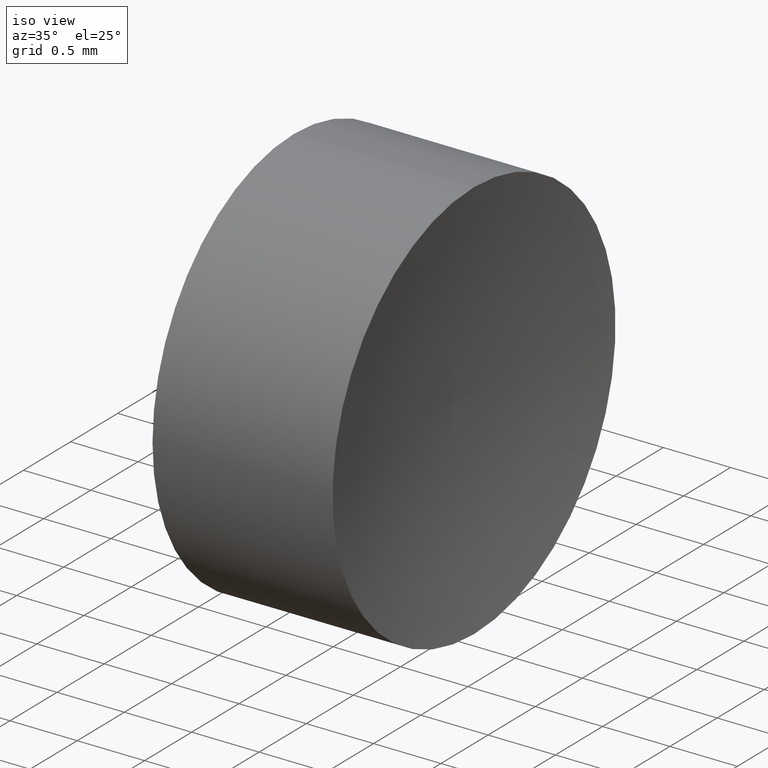
[diagram: clean part render]
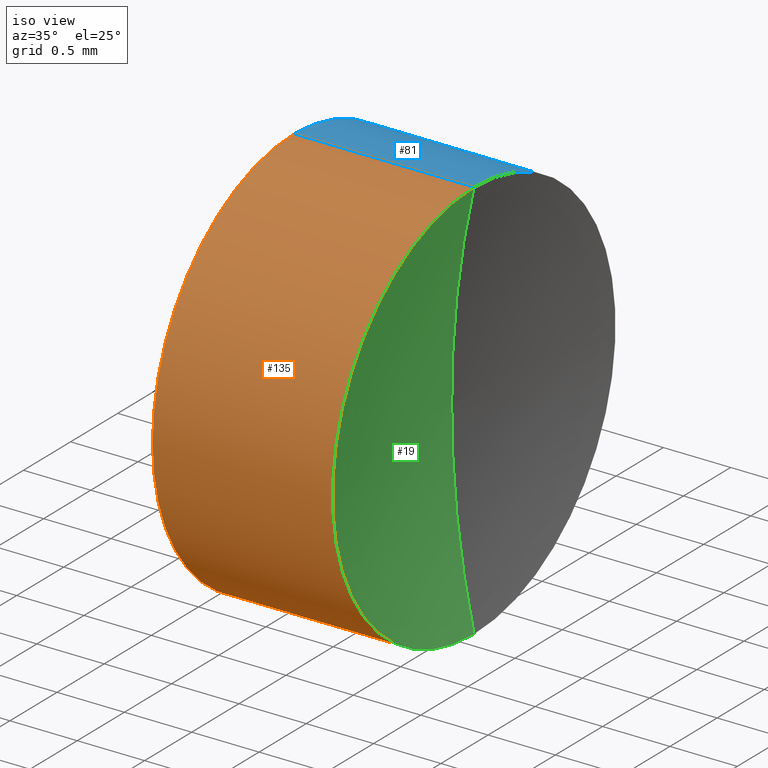
[diagram: same view with three faces highlighted in distinct colors, each labeled with its STEP entity id]
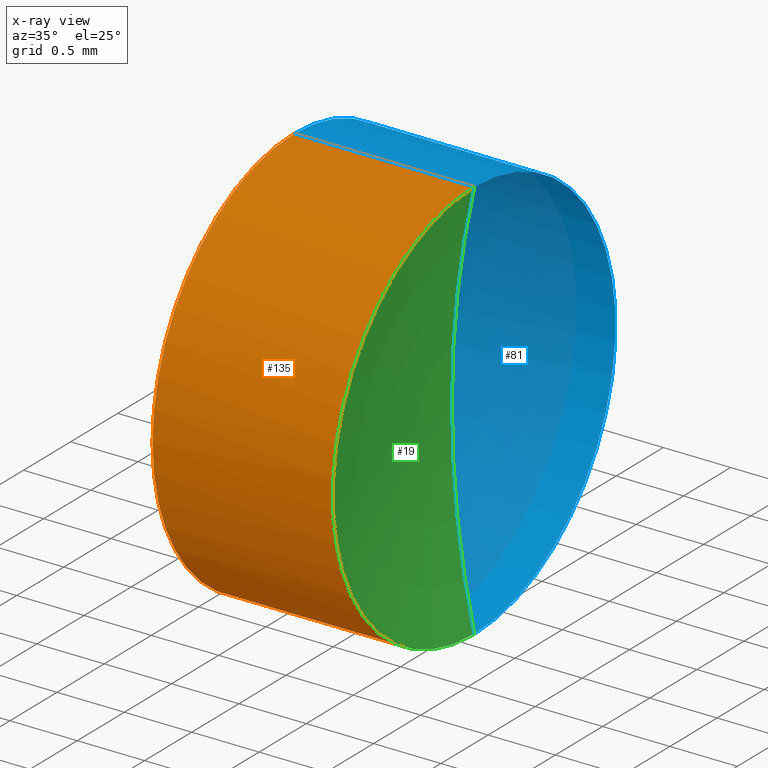
[diagram: x-ray of the same camera — body ghosted, the three highlighted faces saturated]
A machine part, iso view with three faces highlighted in distinct colors.
The next image is the same camera in x-ray (body ghosted, the three faces saturated) — at least one of them is partly hidden behind the body in this view.
Their STEP definitions:

[orange] entity #135 — the highlighted cylindrical surface (partial cylindrical patch) has radius 1.5 mm, axis along (-1, -0, -0).
#3 = CIRCLE ( 'NONE', #198, 1.499999999999996900 ) ;
#4 = CARTESIAN_POINT ( 'NONE',  ( 10.61246527853420600, 6.522260287298739600, -1.499999999999998700 ) ) ;
#6 = CARTESIAN_POINT ( 'NONE',  ( 12.68015962421213900, 6.522260287298739600, 1.500000000000000200 ) ) ;
#7 = DIRECTION ( 'NONE',  ( 0.0000000000000000000, 0.0000000000000000000, 1.000000000000000000 ) ) ;
#10 = EDGE_CURVE ( 'NONE', #64, #173, #149, .T. ) ;
#13 = FACE_OUTER_BOUND ( 'NONE', #78, .T. ) ;
#20 = DIRECTION ( 'NONE',  ( -1.000000000000000000, -0.0000000000000000000, -0.0000000000000000000 ) ) ;
#25 = CARTESIAN_POINT ( 'NONE',  ( 11.34326470139479100, 6.522260287298739600, 0.0000000000000000000 ) ) ;
#27 = ORIENTED_EDGE ( 'NONE', *, *, #10, .F. ) ;
#29 = AXIS2_PLACEMENT_3D ( 'NONE', #110, #199, #195 ) ;
#34 = EDGE_CURVE ( 'NONE', #125, #83, #137, .T. ) ;
#45 = CARTESIAN_POINT ( 'NONE',  ( 10.61246527853420600, 6.522260287298739600, 1.499999999999998700 ) ) ;
#46 = VECTOR ( 'NONE', #147, 1000.000000000000000 ) ;
#51 = VECTOR ( 'NONE', #138, 1000.000000000000000 ) ;
#55 = DIRECTION ( 'NONE',  ( 0.0000000000000000000, 0.0000000000000000000, 1.000000000000000000 ) ) ;
#62 = EDGE_CURVE ( 'NONE', #125, #64, #74, .T. ) ;
#64 = VERTEX_POINT ( 'NONE', #177 ) ;
#70 = CARTESIAN_POINT ( 'NONE',  ( 10.61246527853420600, 6.522260287298739600, 0.0000000000000000000 ) ) ;
#71 = CARTESIAN_POINT ( 'NONE',  ( 11.34326470139479100, 6.522260287298739600, 1.499999999999996900 ) ) ;
#74 = LINE ( 'NONE', #4, #51 ) ;
#78 = EDGE_LOOP ( 'NONE', ( #176, #115, #111, #211, #27 ) ) ;
#79 = EDGE_CURVE ( 'NONE', #173, #168, #3, .T. ) ;
#83 = VERTEX_POINT ( 'NONE', #6 ) ;
#86 = CARTESIAN_POINT ( 'NONE',  ( 11.34326470139478900, 5.022260287298740500, -1.836970198721027700E-016 ) ) ;
#88 = LINE ( 'NONE', #45, #46 ) ;
#99 = CYLINDRICAL_SURFACE ( 'NONE', #113, 1.499999999999998700 ) ;
#110 = CARTESIAN_POINT ( 'NONE',  ( 11.34326470139479100, 6.522260287298739600, 0.0000000000000000000 ) ) ;
#111 = ORIENTED_EDGE ( 'NONE', *, *, #204, .T. ) ;
#113 = AXIS2_PLACEMENT_3D ( 'NONE', #70, #185, #159 ) ;
#114 = CARTESIAN_POINT ( 'NONE',  ( 12.68015962421213900, 6.522260287298739600, -1.500000000000000200 ) ) ;
#115 = ORIENTED_EDGE ( 'NONE', *, *, #34, .T. ) ;
#125 = VERTEX_POINT ( 'NONE', #114 ) ;
#135 = ADVANCED_FACE ( 'NONE', ( #13 ), #99, .T. ) ;
#137 = CIRCLE ( 'NONE', #148, 1.500000000000000400 ) ;
#138 = DIRECTION ( 'NONE',  ( -1.000000000000000000, -0.0000000000000000000, -0.0000000000000000000 ) ) ;
#141 = DIRECTION ( 'NONE',  ( -1.000000000000000000, -0.0000000000000000000, -0.0000000000000000000 ) ) ;
#147 = DIRECTION ( 'NONE',  ( -1.000000000000000000, -0.0000000000000000000, -0.0000000000000000000 ) ) ;
#148 = AXIS2_PLACEMENT_3D ( 'NONE', #170, #20, #55 ) ;
#149 = CIRCLE ( 'NONE', #29, 1.499999999999996900 ) ;
#159 = DIRECTION ( 'NONE',  ( 0.0000000000000000000, 0.0000000000000000000, 1.000000000000000000 ) ) ;
#168 = VERTEX_POINT ( 'NONE', #71 ) ;
#170 = CARTESIAN_POINT ( 'NONE',  ( 12.68015962421213900, 6.522260287298739600, 0.0000000000000000000 ) ) ;
#173 = VERTEX_POINT ( 'NONE', #86 ) ;
#176 = ORIENTED_EDGE ( 'NONE', *, *, #62, .F. ) ;
#177 = CARTESIAN_POINT ( 'NONE',  ( 11.34326470139479100, 6.522260287298739600, -1.499999999999996900 ) ) ;
#185 = DIRECTION ( 'NONE',  ( -1.000000000000000000, -0.0000000000000000000, -0.0000000000000000000 ) ) ;
#195 = DIRECTION ( 'NONE',  ( 0.0000000000000000000, 0.0000000000000000000, 1.000000000000000000 ) ) ;
#198 = AXIS2_PLACEMENT_3D ( 'NONE', #25, #141, #7 ) ;
#199 = DIRECTION ( 'NONE',  ( -1.000000000000000000, -0.0000000000000000000, -0.0000000000000000000 ) ) ;
#204 = EDGE_CURVE ( 'NONE', #83, #168, #88, .T. ) ;
#211 = ORIENTED_EDGE ( 'NONE', *, *, #79, .F. ) ;

[blue] entity #81 — the highlighted cylindrical surface (partial cylindrical patch) has radius 1.5 mm, axis along (-1, -0, -0).
#4 = CARTESIAN_POINT ( 'NONE',  ( 10.61246527853420600, 6.522260287298739600, -1.499999999999998700 ) ) ;
#6 = CARTESIAN_POINT ( 'NONE',  ( 12.68015962421213900, 6.522260287298739600, 1.500000000000000200 ) ) ;
#9 = DIRECTION ( 'NONE',  ( -1.000000000000000000, -0.0000000000000000000, -0.0000000000000000000 ) ) ;
#12 = ORIENTED_EDGE ( 'NONE', *, *, #107, .F. ) ;
#17 = AXIS2_PLACEMENT_3D ( 'NONE', #98, #39, #37 ) ;
#21 = CARTESIAN_POINT ( 'NONE',  ( 11.34326470139478900, 8.022260287298737000, 0.0000000000000000000 ) ) ;
#37 = DIRECTION ( 'NONE',  ( 0.0000000000000000000, 0.0000000000000000000, 1.000000000000000000 ) ) ;
#39 = DIRECTION ( 'NONE',  ( -1.000000000000000000, -0.0000000000000000000, -0.0000000000000000000 ) ) ;
#40 = DIRECTION ( 'NONE',  ( -1.000000000000000000, -0.0000000000000000000, -0.0000000000000000000 ) ) ;
#45 = CARTESIAN_POINT ( 'NONE',  ( 10.61246527853420600, 6.522260287298739600, 1.499999999999998700 ) ) ;
#46 = VECTOR ( 'NONE', #147, 1000.000000000000000 ) ;
#51 = VECTOR ( 'NONE', #138, 1000.000000000000000 ) ;
#62 = EDGE_CURVE ( 'NONE', #125, #64, #74, .T. ) ;
#64 = VERTEX_POINT ( 'NONE', #177 ) ;
#71 = CARTESIAN_POINT ( 'NONE',  ( 11.34326470139479100, 6.522260287298739600, 1.499999999999996900 ) ) ;
#72 = EDGE_LOOP ( 'NONE', ( #194, #118, #12, #210, #132 ) ) ;
#74 = LINE ( 'NONE', #4, #51 ) ;
#81 = ADVANCED_FACE ( 'NONE', ( #179 ), #127, .T. ) ;
#83 = VERTEX_POINT ( 'NONE', #6 ) ;
#85 = EDGE_CURVE ( 'NONE', #83, #125, #172, .T. ) ;
#88 = LINE ( 'NONE', #45, #46 ) ;
#90 = AXIS2_PLACEMENT_3D ( 'NONE', #154, #189, #175 ) ;
#98 = CARTESIAN_POINT ( 'NONE',  ( 11.34326470139479100, 6.522260287298739600, 0.0000000000000000000 ) ) ;
#102 = DIRECTION ( 'NONE',  ( 0.0000000000000000000, 0.0000000000000000000, 1.000000000000000000 ) ) ;
#107 = EDGE_CURVE ( 'NONE', #169, #64, #184, .T. ) ;
#114 = CARTESIAN_POINT ( 'NONE',  ( 12.68015962421213900, 6.522260287298739600, -1.500000000000000200 ) ) ;
#117 = CARTESIAN_POINT ( 'NONE',  ( 11.34326470139479100, 6.522260287298739600, 0.0000000000000000000 ) ) ;
#118 = ORIENTED_EDGE ( 'NONE', *, *, #62, .T. ) ;
#125 = VERTEX_POINT ( 'NONE', #114 ) ;
#127 = CYLINDRICAL_SURFACE ( 'NONE', #136, 1.499999999999998700 ) ;
#132 = ORIENTED_EDGE ( 'NONE', *, *, #204, .F. ) ;
#136 = AXIS2_PLACEMENT_3D ( 'NONE', #188, #9, #102 ) ;
#138 = DIRECTION ( 'NONE',  ( -1.000000000000000000, -0.0000000000000000000, -0.0000000000000000000 ) ) ;
#143 = DIRECTION ( 'NONE',  ( 0.0000000000000000000, 0.0000000000000000000, 1.000000000000000000 ) ) ;
#144 = AXIS2_PLACEMENT_3D ( 'NONE', #117, #40, #143 ) ;
#147 = DIRECTION ( 'NONE',  ( -1.000000000000000000, -0.0000000000000000000, -0.0000000000000000000 ) ) ;
#154 = CARTESIAN_POINT ( 'NONE',  ( 12.68015962421213900, 6.522260287298739600, 0.0000000000000000000 ) ) ;
#164 = CIRCLE ( 'NONE', #144, 1.499999999999996900 ) ;
#168 = VERTEX_POINT ( 'NONE', #71 ) ;
#169 = VERTEX_POINT ( 'NONE', #21 ) ;
#172 = CIRCLE ( 'NONE', #90, 1.500000000000000400 ) ;
#175 = DIRECTION ( 'NONE',  ( 0.0000000000000000000, 0.0000000000000000000, 1.000000000000000000 ) ) ;
#177 = CARTESIAN_POINT ( 'NONE',  ( 11.34326470139479100, 6.522260287298739600, -1.499999999999996900 ) ) ;
#179 = FACE_OUTER_BOUND ( 'NONE', #72, .T. ) ;
#184 = CIRCLE ( 'NONE', #17, 1.499999999999996900 ) ;
#188 = CARTESIAN_POINT ( 'NONE',  ( 10.61246527853420600, 6.522260287298739600, 0.0000000000000000000 ) ) ;
#189 = DIRECTION ( 'NONE',  ( -1.000000000000000000, -0.0000000000000000000, -0.0000000000000000000 ) ) ;
#193 = EDGE_CURVE ( 'NONE', #168, #169, #164, .T. ) ;
#194 = ORIENTED_EDGE ( 'NONE', *, *, #85, .T. ) ;
#204 = EDGE_CURVE ( 'NONE', #83, #168, #88, .T. ) ;
#210 = ORIENTED_EDGE ( 'NONE', *, *, #193, .F. ) ;

[green] entity #19 — the highlighted toroidal blend (fillet) surface has major radius 0.0209 mm and minor (blend) radius 6.67 mm.
#1 = ORIENTED_EDGE ( 'NONE', *, *, #15, .F. ) ;
#6 = CARTESIAN_POINT ( 'NONE',  ( 12.68015962421213900, 6.522260287298739600, 1.500000000000000200 ) ) ;
#14 = DIRECTION ( 'NONE',  ( -1.000000000000000000, -0.0000000000000000000, -0.0000000000000000000 ) ) ;
#15 = EDGE_CURVE ( 'NONE', #83, #65, #95, .T. ) ;
#16 = EDGE_LOOP ( 'NONE', ( #23, #75, #1 ) ) ;
#19 = ADVANCED_FACE ( 'NONE', ( #58 ), #131, .F. ) ;
#20 = DIRECTION ( 'NONE',  ( -1.000000000000000000, -0.0000000000000000000, -0.0000000000000000000 ) ) ;
#23 = ORIENTED_EDGE ( 'NONE', *, *, #34, .F. ) ;
#32 = AXIS2_PLACEMENT_3D ( 'NONE', #59, #84, #205 ) ;
#34 = EDGE_CURVE ( 'NONE', #125, #83, #137, .T. ) ;
#36 = AXIS2_PLACEMENT_3D ( 'NONE', #50, #92, #128 ) ;
#49 = CARTESIAN_POINT ( 'NONE',  ( 19.18408597058988400, 6.522260287298739600, 0.0000000000000000000 ) ) ;
#50 = CARTESIAN_POINT ( 'NONE',  ( 19.18408597058988400, 6.522260287298739600, 0.02086441429682405600 ) ) ;
#55 = DIRECTION ( 'NONE',  ( 0.0000000000000000000, 0.0000000000000000000, 1.000000000000000000 ) ) ;
#58 = FACE_OUTER_BOUND ( 'NONE', #16, .T. ) ;
#59 = CARTESIAN_POINT ( 'NONE',  ( 19.18408597058988400, 6.522260287298739600, -0.02086441429682405600 ) ) ;
#65 = VERTEX_POINT ( 'NONE', #158 ) ;
#75 = ORIENTED_EDGE ( 'NONE', *, *, #130, .T. ) ;
#83 = VERTEX_POINT ( 'NONE', #6 ) ;
#84 = DIRECTION ( 'NONE',  ( -0.0000000000000000000, 1.000000000000000000, 1.224646799147353200E-016 ) ) ;
#92 = DIRECTION ( 'NONE',  ( 0.0000000000000000000, -1.000000000000000000, 0.0000000000000000000 ) ) ;
#94 = CIRCLE ( 'NONE', #32, 6.670000000000000800 ) ;
#95 = CIRCLE ( 'NONE', #36, 6.670000000000000800 ) ;
#114 = CARTESIAN_POINT ( 'NONE',  ( 12.68015962421213900, 6.522260287298739600, -1.500000000000000200 ) ) ;
#125 = VERTEX_POINT ( 'NONE', #114 ) ;
#128 = DIRECTION ( 'NONE',  ( 0.0000000000000000000, 0.0000000000000000000, -1.000000000000000000 ) ) ;
#130 = EDGE_CURVE ( 'NONE', #125, #65, #94, .T. ) ;
#131 = TOROIDAL_SURFACE ( 'NONE', #155, 0.02086441429682405600, 6.670000000000000800 ) ;
#137 = CIRCLE ( 'NONE', #148, 1.500000000000000400 ) ;
#148 = AXIS2_PLACEMENT_3D ( 'NONE', #170, #20, #55 ) ;
#155 = AXIS2_PLACEMENT_3D ( 'NONE', #49, #14, #201 ) ;
#158 = CARTESIAN_POINT ( 'NONE',  ( 12.51411860363702300, 6.522260287298739600, 0.0000000000000000000 ) ) ;
#170 = CARTESIAN_POINT ( 'NONE',  ( 12.68015962421213900, 6.522260287298739600, 0.0000000000000000000 ) ) ;
#201 = DIRECTION ( 'NONE',  ( 0.0000000000000000000, 0.0000000000000000000, 1.000000000000000000 ) ) ;
#205 = DIRECTION ( 'NONE',  ( 0.0000000000000000000, -1.300392410777216600E-016, 1.000000000000000000 ) ) ;